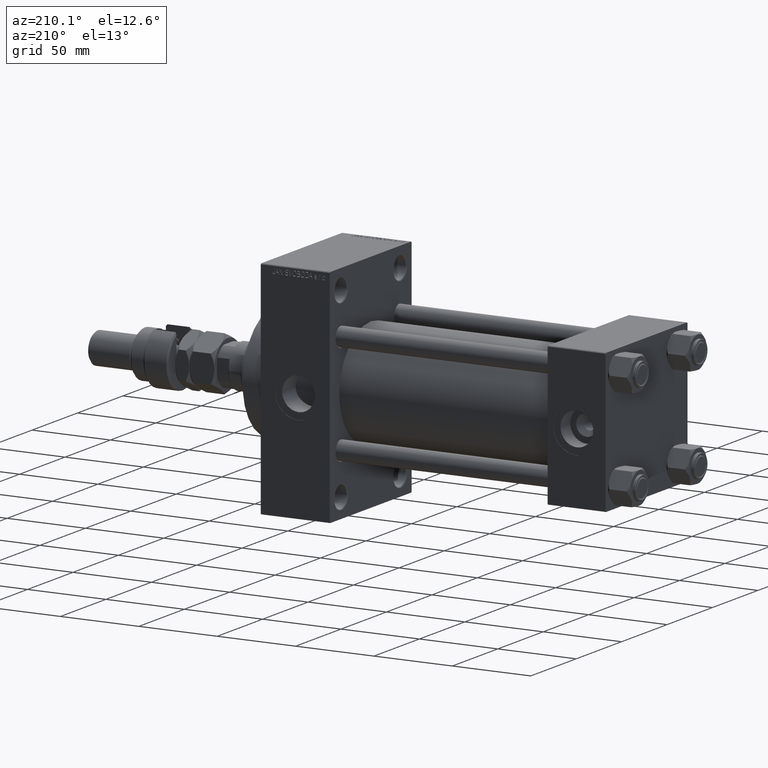
[diagram: clean part render]
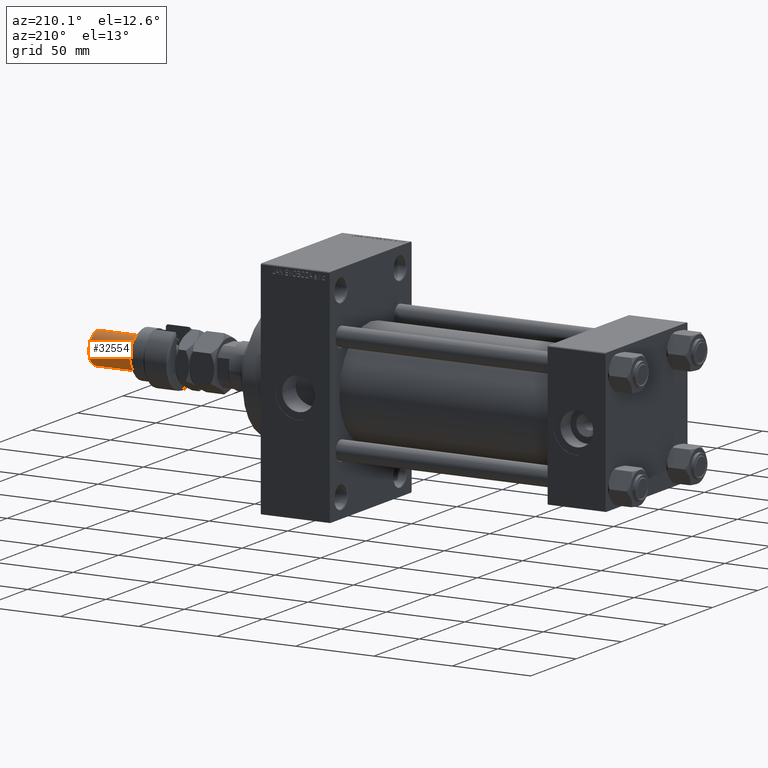
[diagram: same view with one face highlighted and labeled with its STEP entity id]
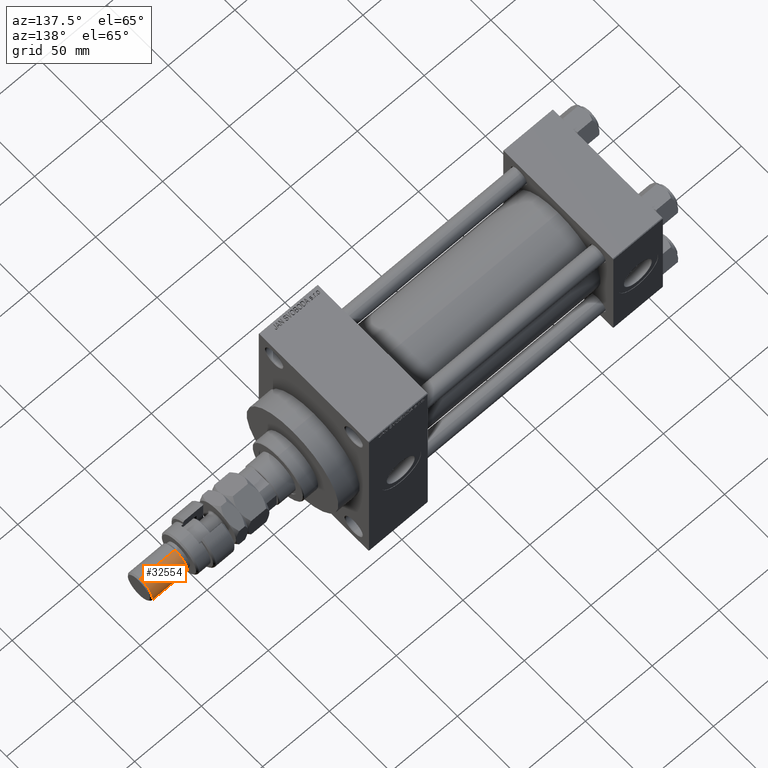
[diagram: same view with one face highlighted and labeled with its STEP entity id]
A machine part, auxiliary view. The second image highlights one B-rep face of the part: STEP entity #32554.
A second angle (auxiliary view) of the same face is appended — the face is thin or edge-on in the first view.
In plain terms, the highlighted cylindrical surface (edge-blend (fillet) strip) has radius 10 mm, axis along (-1, -0, 0).
Its self-contained STEP definition (entity closure, byte-faithful):
#1414 = DIRECTION ( 'NONE',  ( -0.000000000000000000, -0.000000000000000000, -1.000000000000000000 ) ) ;
#2160 = LINE ( 'NONE', #28244, #18640 ) ;
#3875 = ORIENTED_EDGE ( 'NONE', *, *, #32240, .T. ) ;
#4596 = VECTOR ( 'NONE', #22952, 1000.000000000000000 ) ;
#6816 = DIRECTION ( 'NONE',  ( -1.000000000000000000, 0.000000000000000000, 0.000000000000000000 ) ) ;
#7029 = EDGE_CURVE ( 'NONE', #23955, #26056, #41694, .T. ) ;
#7250 = DIRECTION ( 'NONE',  ( -0.000000000000000000, -0.000000000000000000, 1.000000000000000000 ) ) ;
#7309 = CYLINDRICAL_SURFACE ( 'NONE', #29155, 10.00000000000000000 ) ;
#7818 = VERTEX_POINT ( 'NONE', #14844 ) ;
#9440 = CARTESIAN_POINT ( 'NONE',  ( 10.00000000000000000, 1.224646799147353256E-15, 29.00000000000000711 ) ) ;
#9944 = EDGE_CURVE ( 'NONE', #13372, #26056, #26753, .T. ) ;
#12013 = CARTESIAN_POINT ( 'NONE',  ( -10.00000000000000000, 0.000000000000000000, 29.00000000000000711 ) ) ;
#13372 = VERTEX_POINT ( 'NONE', #35009 ) ;
#13891 = AXIS2_PLACEMENT_3D ( 'NONE', #45281, #37449, #18436 ) ;
#14697 = CIRCLE ( 'NONE', #13891, 10.00000000000000000 ) ;
#14844 = CARTESIAN_POINT ( 'NONE',  ( 10.00000000000000000, 1.224646799147353256E-15, 54.99999999999998579 ) ) ;
#15422 = CARTESIAN_POINT ( 'NONE',  ( 0.000000000000000000, 0.000000000000000000, 56.00000000000000711 ) ) ;
#18436 = DIRECTION ( 'NONE',  ( 1.000000000000000000, 0.000000000000000000, 0.000000000000000000 ) ) ;
#18640 = VECTOR ( 'NONE', #1414, 1000.000000000000000 ) ;
#19844 = AXIS2_PLACEMENT_3D ( 'NONE', #46001, #7250, #22709 ) ;
#20216 = ORIENTED_EDGE ( 'NONE', *, *, #9944, .F. ) ;
#22709 = DIRECTION ( 'NONE',  ( 1.000000000000000000, 0.000000000000000000, 0.000000000000000000 ) ) ;
#22952 = DIRECTION ( 'NONE',  ( -0.000000000000000000, -0.000000000000000000, -1.000000000000000000 ) ) ;
#23955 = VERTEX_POINT ( 'NONE', #9440 ) ;
#26056 = VERTEX_POINT ( 'NONE', #12013 ) ;
#26753 = LINE ( 'NONE', #42204, #4596 ) ;
#28244 = CARTESIAN_POINT ( 'NONE',  ( 10.00000000000000000, 1.224646799147353256E-15, 56.00000000000000711 ) ) ;
#29155 = AXIS2_PLACEMENT_3D ( 'NONE', #15422, #49615, #6816 ) ;
#32240 = EDGE_CURVE ( 'NONE', #7818, #23955, #2160, .T. ) ;
#32554 = ADVANCED_FACE ( 'NONE', ( #45565 ), #7309, .T. ) ;
#35009 = CARTESIAN_POINT ( 'NONE',  ( -10.00000000000000000, 0.000000000000000000, 54.99999999999998579 ) ) ;
#35791 = EDGE_CURVE ( 'NONE', #13372, #7818, #14697, .T. ) ;
#36437 = EDGE_LOOP ( 'NONE', ( #40675, #3875, #39365, #20216 ) ) ;
#37449 = DIRECTION ( 'NONE',  ( 0.000000000000000000, 0.000000000000000000, -1.000000000000000000 ) ) ;
#39365 = ORIENTED_EDGE ( 'NONE', *, *, #7029, .T. ) ;
#40675 = ORIENTED_EDGE ( 'NONE', *, *, #35791, .T. ) ;
#41694 = CIRCLE ( 'NONE', #19844, 10.00000000000000000 ) ;
#42204 = CARTESIAN_POINT ( 'NONE',  ( -10.00000000000000000, 0.000000000000000000, 56.00000000000000711 ) ) ;
#45281 = CARTESIAN_POINT ( 'NONE',  ( 0.000000000000000000, 0.000000000000000000, 54.99999999999998579 ) ) ;
#45565 = FACE_OUTER_BOUND ( 'NONE', #36437, .T. ) ;
#46001 = CARTESIAN_POINT ( 'NONE',  ( 0.000000000000000000, 0.000000000000000000, 29.00000000000000711 ) ) ;
#49615 = DIRECTION ( 'NONE',  ( -0.000000000000000000, -0.000000000000000000, -1.000000000000000000 ) ) ;